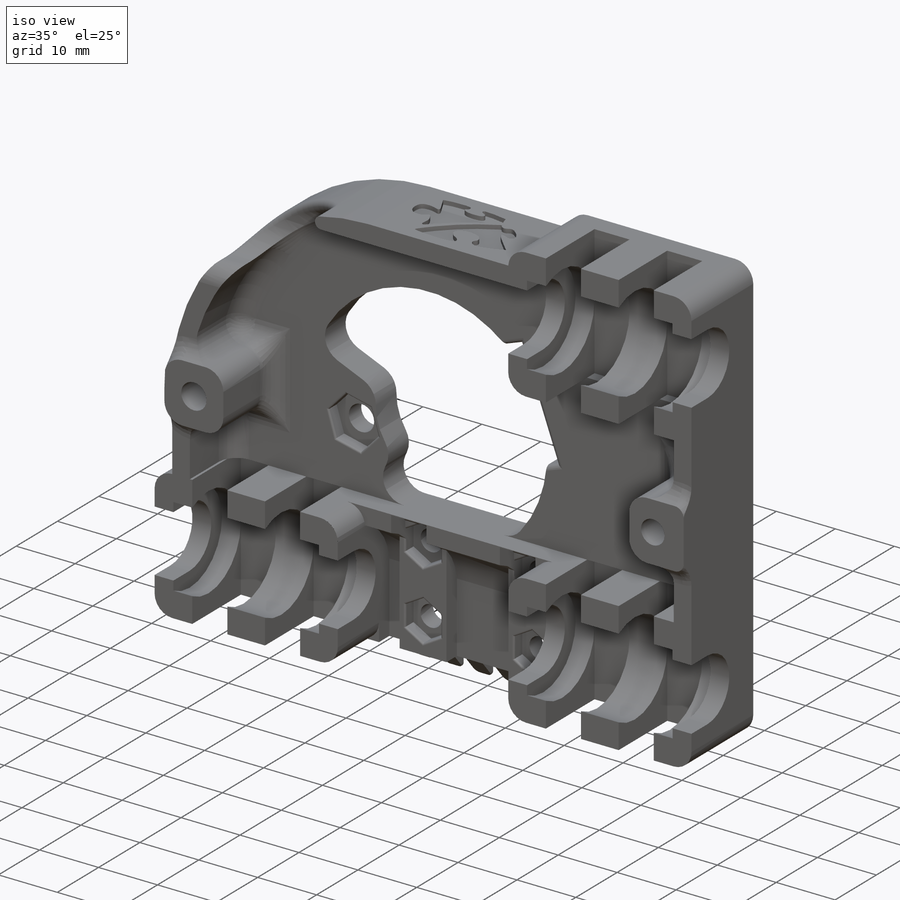
[diagram: iso view]
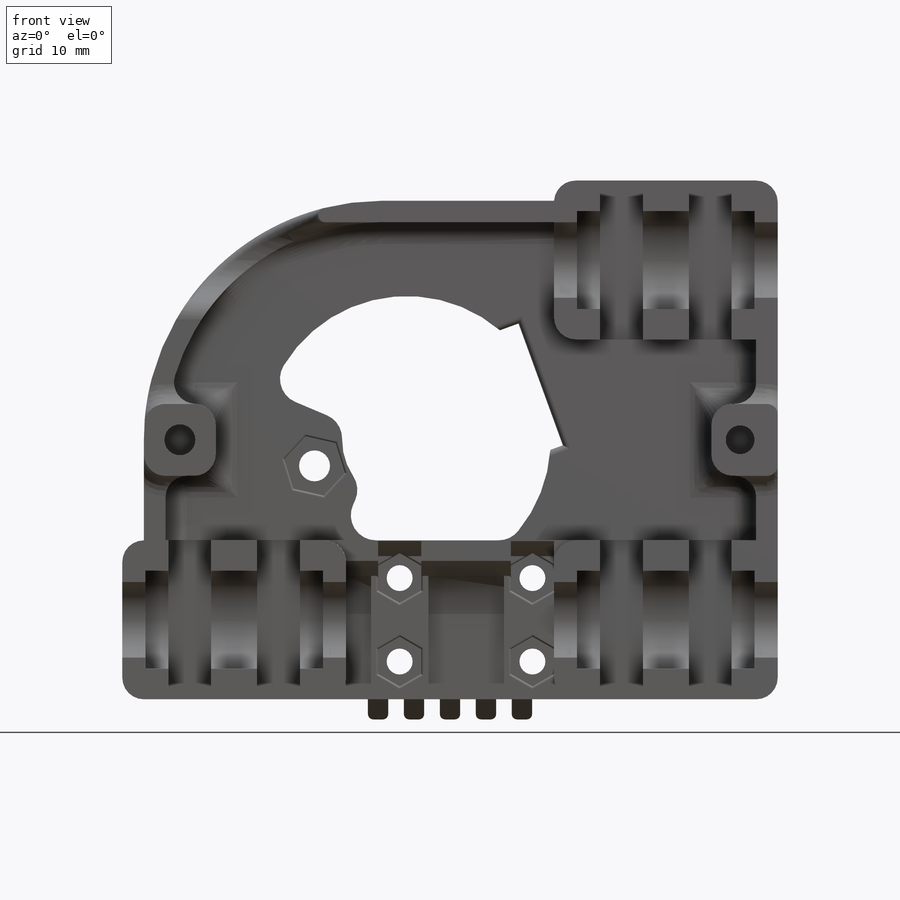
[diagram: front view]
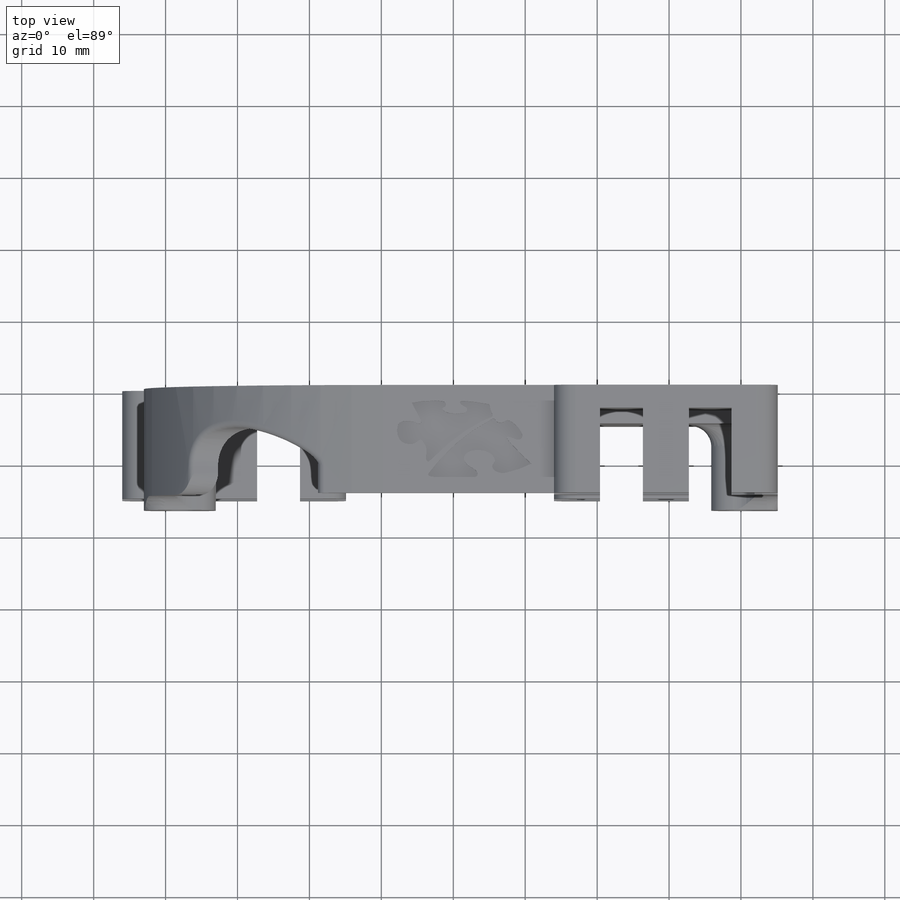
[diagram: top view]
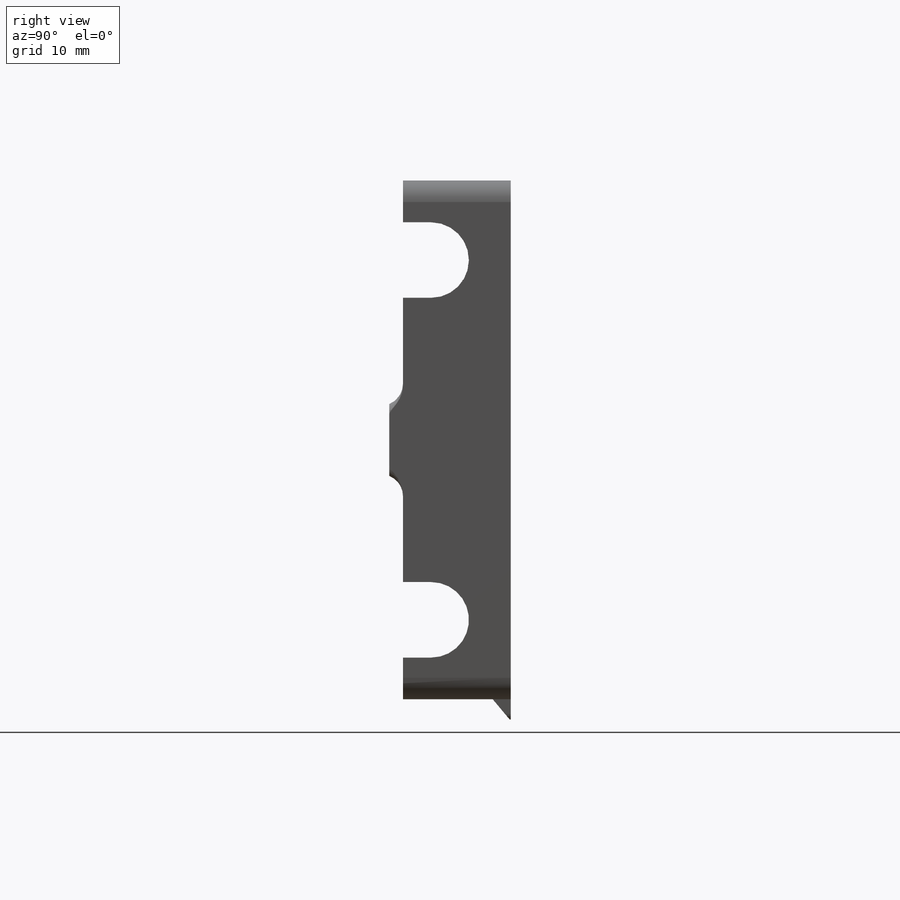
[diagram: right view]
SOLIDWORKS PART (.sldprt)
format: sldprt  version: not decoded by parser v0  size: 1,864,192 bytes
history: native  units: mm
features: sketch x41, extrude x23, cut_extrude x18, fillet x18, plane x5, material x1, chamfer x1 (+11 scaffold rows collapsed)
feature tree (118):
  scaffold x11  (default folders/planes/origin — collapsed)
  material  "Material <not specified>"
  plane  "Plane1"  Offset=5mm
  sketch  "Sketch1"  dims[D1=~1.184998mm]
  extrude  "Boss-Extrude1"  Depth=5mm
  sketch  "Sketch12"
  extrude  "Boss-Extrude2"  [1 undecoded]
  sketch  "Sketch13"
  extrude  "Boss-Extrude3"  [1 undecoded]
  sketch  "Sketch14"
  cut_extrude  "Cut-Extrude11"  Depth=1.79mm
  plane  "Plane2"
  sketch  "Sketch16"
  extrude  "Boss-Extrude5"  Depth=6.400002mm
  sketch  "Sketch17"
  extrude  "Boss-Extrude6"  Depth=6.400002mm
  plane  "Plane3"  Offset=15.103935mm
  sketch  "Sketch18"
  extrude  "Boss-Extrude7"  Depth=6.399994mm
  sketch  "Sketch19"
  extrude  "Boss-Extrude8"  Depth=6.400002mm
  sketch  "Sketch20"
  extrude  "Boss-Extrude9"  Depth=6.399994mm
  sketch  "Sketch22"
  extrude  "Boss-Extrude11"  Depth=6.400002mm
  plane  "Plane4"  Offset=57.266064mm
  sketch  "Sketch24"
  extrude  "Boss-Extrude13"  Depth=6.399998mm
  sketch  "Sketch25"
  extrude  "Boss-Extrude14"  Depth=9.985mm
  sketch  "Sketch26"
  extrude  "Boss-Extrude15"  Depth=11.775mm
  sketch  "Sketch39"
  cut_extrude  "Cut-Extrude23"  [1 undecoded]
  sketch  "Sketch42"
  cut_extrude  "Cut-Extrude25"  Depth=15.55mm
  sketch  "Sketch38"  dims[D1=~7.817202mm]
  cut_extrude  "Cut-Extrude22"  Depth=15.55mm
  fillet  "Fillet3"  Radius=3mm
  fillet  "Fillet4"  Radius=3mm
  sketch  "Sketch48"  dims[D1=2.5mm]
  cut_extrude  "Cut-Extrude28"  [1 undecoded]
  sketch  "Sketch45"  dims[c1.D1=8.0mm c1.D2=~6.071352mm c2.D2=45.0deg c2.D1=5.0mm]
  extrude  "Boss-Extrude16"  [1 undecoded]
  fillet  "Fillet1"  Radius=3.5mm
  sketch  "Sketch51"  dims[c1.D2=3.6mm c1.D3=3.6mm c1.D4=4.0mm c2.D2=4.0mm c2.D3=4.0mm c2.D1=5.0mm]
  cut_extrude  "Cut-Extrude29"  [1 undecoded]
  sketch  "Sketch43"  dims[D5=~1.35586mm D1=4.0mm D2=4.0mm D3=1.8mm D4=1.8mm]
  cut_extrude  "Cut-Extrude26"  [1 undecoded]
  sketch  "Sketch44"  dims[c1.D1=7.5mm c1.D2=6.0mm c1.D3=6.0mm c1.D4=6.0mm c1.D5=6.0mm c1.D6=~3.175426mm c2.D6=90.0deg c2.D7=~3.175426mm c3.D7=90.0deg c3.D8=~3.175426mm c4.D8=90.0deg c5.D8=~3.175426mm c6.D8=90.0deg c7.D8=~3.175426mm]
  cut_extrude  "Cut-Extrude27"  Depth=2mm
  plane  "Plane5"
  sketch  "Sketch58"  dims[D1=3.35mm]
  cut_extrude  "Cut-Extrude30"  Depth=3mm
  sketch  "Sketch59"  dims[D1=0.0mm]
  cut_extrude  "Cut-Extrude31"  Depth=3.5mm
  sketch  "Sketch61"  dims[c1.D1=~2.022985mm c2.D1=~87.142029deg c3.D1=~2.150138mm c3.D2=18.02mm c3.D3=~18.042441mm c4.D3=~92.857971deg c4.D1=2.75mm]
  cut_extrude  "Cut-Extrude32"  [1 undecoded]
  sketch  "Sketch65"  dims[c1.D1=~15.265417mm c2.D1=60.0deg c2.D2=~11.033299mm c3.D2=60.0deg]
  extrude  "Boss-Extrude17"  Depth=10mm
  sketch  "Sketch66"  dims[D1=0.0mm D2=0.0mm]
  cut_extrude  "Cut-Extrude33"  Depth=10mm
  sketch  "Sketch67"
  cut_extrude  "Cut-Extrude34"  [1 undecoded]
  sketch  "Sketch68"  dims[D1=0.0mm]
  cut_extrude  "Cut-Extrude35"  [1 undecoded]
  sketch  "Sketch69"  dims[c1.D1=0.0mm c1.D2=4.0mm c1.D3=4.0mm c1.D4=3.0mm c2.D1=3.0mm c2.D2=3.0mm]
  extrude  "Boss-Extrude18"  [1 undecoded]
  sketch  "Sketch72"  dims[D1=3.0mm]
  extrude  "Boss-Extrude21"  [1 undecoded]
  sketch  "Sketch73"
  cut_extrude  "Cut-Extrude36"  [1 undecoded]
  fillet  "Fillet6"  Radius=3mm
  fillet  "Fillet10"  Radius=1mm
  fillet  "Fillet11"  Radius=3mm
  sketch  "Sketch74"  dims[D1=7.0mm D2=5.0mm D3=5.0mm]
  extrude  "Boss-Extrude22"  [1 undecoded]
  fillet  "Fillet12"  Radius=3mm
  fillet  "Fillet13"  Radius=3mm
  sketch  "Sketch75"  dims[D1=~1.642027mm]
  cut_extrude  "Cut-Extrude37"  [1 undecoded]
  sketch  "Sketch77"
  extrude  "Boss-Extrude23"  [1 undecoded]
  sketch  "Sketch78"  dims[c1.D1=3.0mm c1.D2=5.0mm c1.D3=4.0mm c1.D4=4.0mm c2.D1=1.0mm c2.D2=1.0mm]
  extrude  "Boss-Extrude24"  [1 undecoded]
  fillet  "Fillet14"  Radius=3mm
  fillet  "Fillet15"  Radius=3mm
  fillet  "Fillet16"  Radius=3mm
  fillet  "Fillet17"  Radius=3mm
  sketch  "Sketch80"  dims[c1.D1=7.3mm c1.D2=7.3mm c1.D3=~4.214657mm c2.D3=0.0deg c3.D3=1.5776mm]
  cut_extrude  "Cut-Extrude38"  Depth=8.4mm
  sketch  "Sketch82"  dims[D1=0.3978mm D2=0.3978mm D3=0.7956mm D4=0.7956mm]
  sketch  "Sketch83"
  extrude  "Boss-Extrude25"  Depth=0.68mm
  extrude  "Boss-Extrude26"  [1 undecoded]
  sketch  "Sketch85"  dims[D1=0.0mm D2=0.0mm D3=1.5mm D4=1.5mm D5=1.5mm]
  extrude  "Boss-Extrude27"  Depth=1.9mm
  fillet  "Fillet18"  Radius=3mm
  fillet  "Fillet19"  Radius=3mm
  sketch  "Sketch86"  dims[c1.D1=0.0mm c1.D2=2.04mm c2.D1=0.05mm]
  extrude  "Boss-Extrude28"  Depth=2.8mm
  fillet  "Fillet20"  Radius=0.75mm
  chamfer  "Chamfer1"  Distance=2.8mm Angle=40deg
  sketch  "Sketch87"
  cut_extrude  "Cut-Extrude39"  Depth=0.7mm
  fillet  "Fillet21"  Radius=0.3mm
  fillet  "Fillet22"  Radius=0.3mm
  fillet  "Fillet23"  Radius=0.75mm
decode coverage: 64 of 101 modeling features carry decoded parameters
note: ~ marks probable driven/reference dimensions
note: 18 parameter values undecoded
summary: no parameter record found for 18 features
note: suppression state not decoded; provenance and decode notes live in map.json
